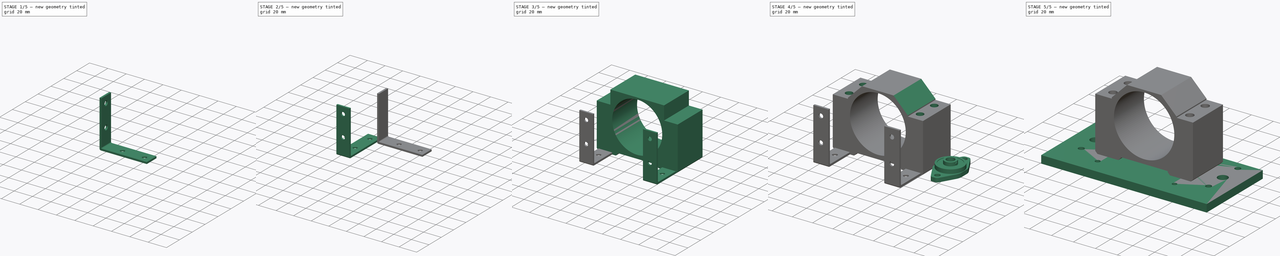
[diagram: build sequence overview — one tinted view per stage of 5, left to right]
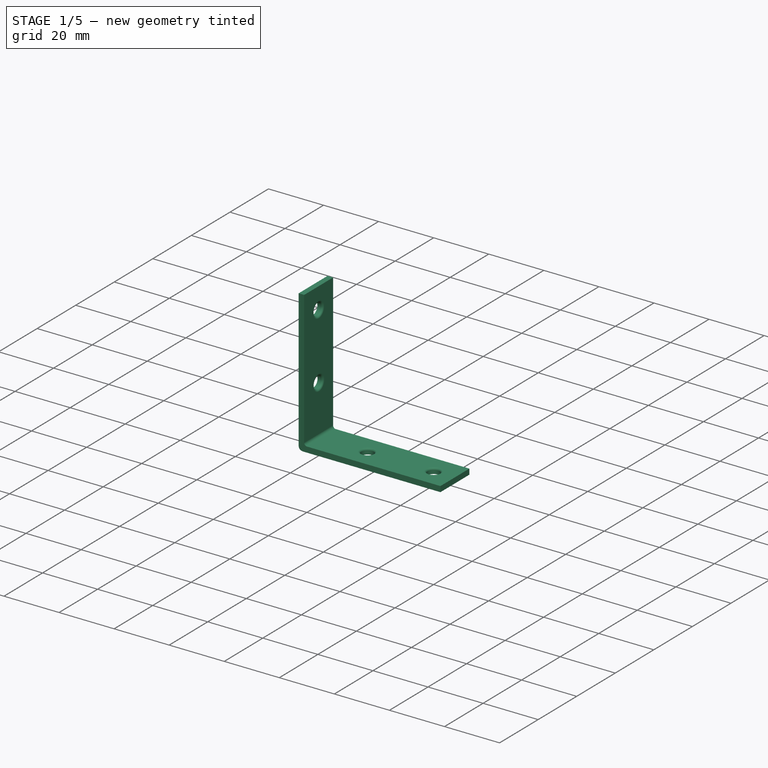
[diagram: stage 1 of 5 — iso view after this stage's code; geometry added in this stage tinted green]
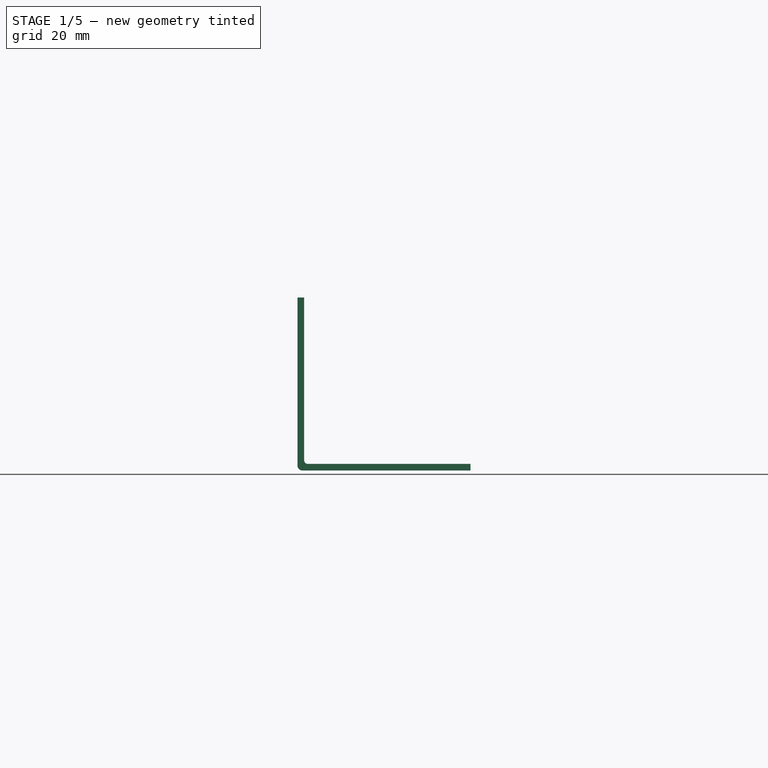
[diagram: stage 1 of 5 — front view after this stage's code; geometry added in this stage tinted green]
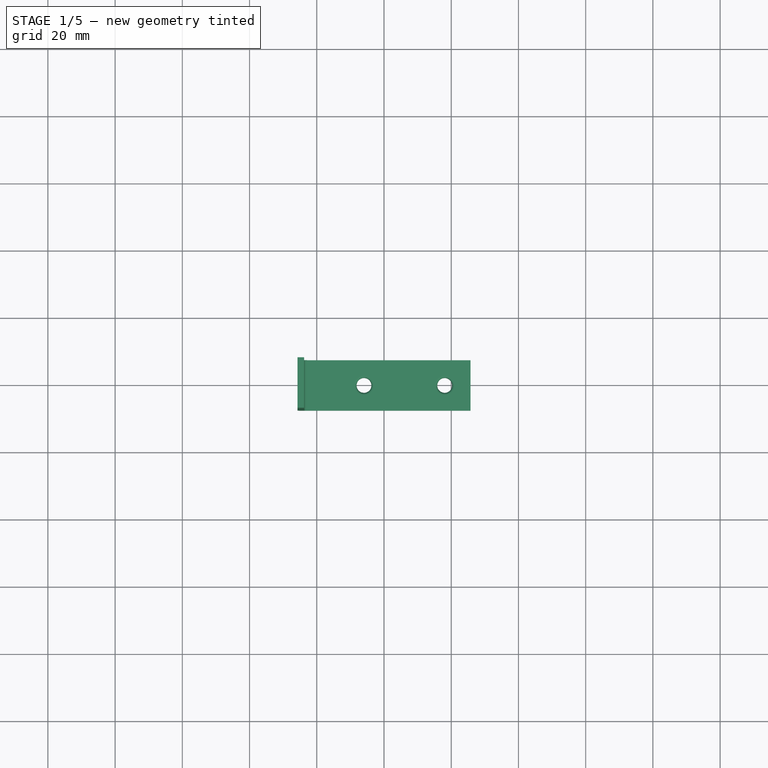
[diagram: stage 1 of 5 — top view after this stage's code; geometry added in this stage tinted green]
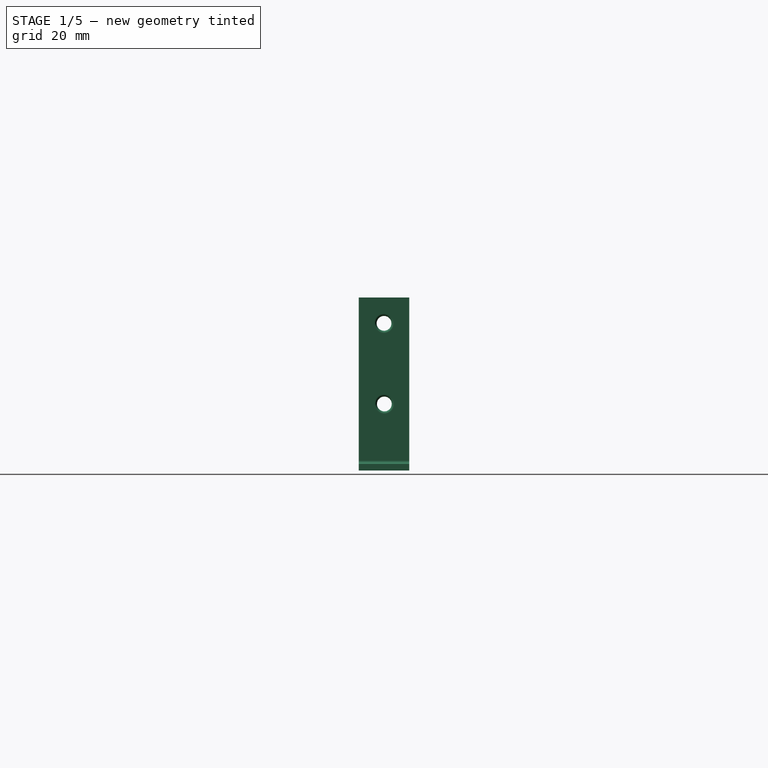
[diagram: stage 1 of 5 — right view after this stage's code; geometry added in this stage tinted green]
FCSTD DOCUMENT  (FreeCAD 0.17R13541 (Git))
Label: PieceBottom
License: All rights reserved
LicenseURL: http://en.wikipedia.org/wiki/All_rights_reserved
objects: Sketcher::SketchObject×27, PartDesign::Pocket×13, PartDesign::Pad×12, PartDesign::Fillet×8, PartDesign::Body×6, PartDesign::ShapeBinder×5, App::Part×4, PartDesign::FeatureBase×3, PartDesign::Chamfer×2, App::DocumentObjectGroup×1
note: 101 computed .brp shape members not serialized (recipe doc carries the construction recipe); baked Part::Feature solids carry a one-line shape summary decoded from their .brp

FEATURE [PartDesign::Body] Body005  label="L1"
  Group = -> [Sketch020,Pad011,Sketch021,Pad012,Fillet,Fillet001,Sketch022,Pocket007,Fillet002,Sketch023,Pocket008,Fillet003]
  Origin = -> Origin009
  Placement = pos=(35,-4,0) rot=(0,0,1;1.5708rad)
  Tip = -> Fillet003
FEATURE [Sketcher::SketchObject] Sketch024
  MapMode = 5
  Support = -> [XY_Plane010]
  sketch-geometry (4):
    g0: LineSegment StartX=-25.75 StartY=7.5 StartZ=0 EndX=25.75 EndY=7.5 EndZ=0
    g1: LineSegment StartX=25.75 StartY=7.5 StartZ=0 EndX=25.75 EndY=-7.5 EndZ=0
    g2: LineSegment StartX=25.75 StartY=-7.5 StartZ=0 EndX=-25.75 EndY=-7.5 EndZ=0
    g3: LineSegment StartX=-25.75 StartY=-7.5 StartZ=0 EndX=-25.75 EndY=7.5 EndZ=0
  constraints (11):
    c: Coincident(g0,g1)
    c: Coincident(g1,g2)
    c: Coincident(g2,g3)
    c: Coincident(g3,g0)
    c: Horizontal(g0)
    c: Horizontal(g2)
    c: Vertical(g1)
    c: Vertical(g3)
    c: DistanceX(g0,g0) = 51.5
    c: DistanceY(g1,g1) = 15
    c: Symmetric(g0,g1,g-1)
FEATURE [PartDesign::Pad] Pad013
  Length = 2
  Length2 = 100
  Profile = -> Sketch024
  Type = 0
FEATURE [Sketcher::SketchObject] Sketch025
  ExternalGeometry = -> [Pad013]
  MapMode = 5
  Placement = pos=(0,0,2) rot=(0,0,1;0rad)
  Support = -> [Pad013]
  sketch-geometry (5):
    g0: LineSegment StartX=-25.75 StartY=7.5 StartZ=0 EndX=-23.75 EndY=7.5 EndZ=0
    g1: LineSegment StartX=-23.75 StartY=7.5 StartZ=0 EndX=-23.75 EndY=-7.5 EndZ=0
    g2: LineSegment StartX=-23.75 StartY=-7.5 StartZ=0 EndX=-25.75 EndY=-7.5 EndZ=0
    g3: LineSegment StartX=-25.75 StartY=-7.5 StartZ=0 EndX=-25.75 EndY=7.5 EndZ=0
    g4: GeomPoint X=-11 Y=7.5 Z=0
  constraints (13):
    c: Coincident(g0,g1)
    c: Coincident(g1,g2)
    c: Coincident(g2,g3)
    c: Coincident(g3,g0)
    c: Horizontal(g0)
    c: Horizontal(g2)
    c: Vertical(g1)
    c: Vertical(g3)
    c: PointOnObject(g0,g-3)
    c: PointOnObject(g1,g-5)
    c: PointOnObject(g4,g-4)
    c: DistanceY(g0,g4) = 0
    c: DistanceX(g2,g2) = 2
FEATURE [PartDesign::Pad] Pad014
  BaseFeature = -> Pad013
  Length = 49.5
  Length2 = 100
  Profile = -> Sketch025
  Type = 0
FEATURE [PartDesign::Fillet] Fillet004
  Base = -> Pad014 [Edge7]
  BaseFeature = -> Pad014
  Radius = 1.5
FEATURE [PartDesign::Fillet] Fillet005
  Base = -> Fillet004 [Edge17]
  BaseFeature = -> Fillet004
  Radius = 1
FEATURE [Sketcher::SketchObject] Sketch026
  ExternalGeometry = -> [Fillet005]
  MapMode = 5
  Placement = pos=(0,0,2) rot=(0,0,1;0rad)
  Support = -> [Fillet005]
  sketch-geometry (7):
    g0: Circle CenterX=18.05 CenterY=0 CenterZ=0 NormalX=0 NormalY=0 NormalZ=1 AngleXU=0 Radius=2.2
    g1: LineSegment [constr] StartX=18.05 StartY=7.5 StartZ=0 EndX=18.05 EndY=0 EndZ=0
    g2: LineSegment [constr] StartX=18.05 StartY=0 StartZ=0 EndX=18.05 EndY=-7.5 EndZ=0
    g3: GeomPoint X=25.75 Y=-3.56525 Z=0
    g4: GeomPoint X=-8 Y=7.5 Z=0
    g5: GeomPoint X=-8.63892 Y=-7.5 Z=0
    g6: Circle CenterX=-5.95 CenterY=0 CenterZ=0 NormalX=0 NormalY=0 NormalZ=1 AngleXU=0 Radius=2.2
  constraints (15):
    c: Radius(g0) = 2.2
    c: PointOnObject(g1,g-3)
    c: Coincident(g1,g0)
    c: Coincident(g2,g0)
    c: PointOnObject(g2,g-4)
    c: Vertical(g2)
    c: Equal(g1,g2)
    c: Vertical(g1)
    c: PointOnObject(g3,g-5)
    c: DistanceX(g0,g3) = 7.7
    c: PointOnObject(g4,g-3)
    c: PointOnObject(g5,g-4)
    c: PointOnObject(g6,g-1)
    c: Radius(g6) = 2.2
    c: DistanceX(g6,g0) = 24
FEATURE [PartDesign::Pocket] Pocket009
  BaseFeature = -> Fillet005
  Length = 5
  Length2 = 100
  Profile = -> Sketch026
  Type = 1
FEATURE [PartDesign::Fillet] Fillet006
  Base = -> Pocket009 [Edge12,Edge11]
  BaseFeature = -> Pocket009
  Radius = 0.7
FEATURE [Sketcher::SketchObject] Sketch027
  ExternalGeometry = -> [Fillet006]
  MapMode = 5
  Placement = pos=(-23.75,0,0) rot=(0.57735,0.57735,0.57735;2.0944rad)
  Support = -> [Fillet006]
  sketch-geometry (9):
    g0: Circle CenterX=0 CenterY=43.8 CenterZ=0 NormalX=0 NormalY=0 NormalZ=1 AngleXU=0 Radius=2.2
    g1: GeomPoint X=-7.5 Y=43.8 Z=0
    g2: GeomPoint X=-3.67932 Y=51.5 Z=0
    g3: GeomPoint X=7.5 Y=43.8 Z=0
    g4: LineSegment [constr] StartX=-7.5 StartY=43.8 StartZ=0 EndX=0 EndY=43.8 EndZ=0
    g5: LineSegment [constr] StartX=7.5 StartY=43.8 StartZ=0 EndX=0 EndY=43.8 EndZ=0
    g6: Circle CenterX=0.10123 CenterY=19.8 CenterZ=0 NormalX=0 NormalY=0 NormalZ=1 AngleXU=0 Radius=2.2
    g7: LineSegment [constr] StartX=0.10123 StartY=19.8 StartZ=0 EndX=-7.5 EndY=19.8 EndZ=0
    g8: LineSegment [constr] StartX=-0.10123 StartY=31.6344 StartZ=0 EndX=7.5 EndY=31.6344 EndZ=0
  constraints (20):
    c: Radius(g0) = 2.2
    c: PointOnObject(g1,g-3)
    c: PointOnObject(g2,g-4)
    c: PointOnObject(g3,g-5)
    c: Coincident(g4,g1)
    c: Coincident(g4,g0)
    c: Coincident(g5,g3)
    c: Coincident(g5,g0)
    c: Equal(g4,g5)
    c: Horizontal(g4)
    c: Horizontal(g5)
    c: DistanceY(g0,g2) = 7.7
    c: Radius(g6) = 2.2
    c: Coincident(g7,g6)
    c: PointOnObject(g7,g-3)
    c: PointOnObject(g8,g-5)
    c: Equal(g7,g8)
    c: Horizontal(g7)
    c: Horizontal(g8)
    c: DistanceY(g6,g0) = 24
FEATURE [PartDesign::Pocket] Pocket010
  BaseFeature = -> Fillet006
  Length = 5
  Length2 = 100
  Profile = -> Sketch027
  Type = 1
FEATURE [PartDesign::Fillet] Fillet007
  Base = -> Pocket010 [Edge40,Edge41]
  BaseFeature = -> Pocket010
  Radius = 0.7
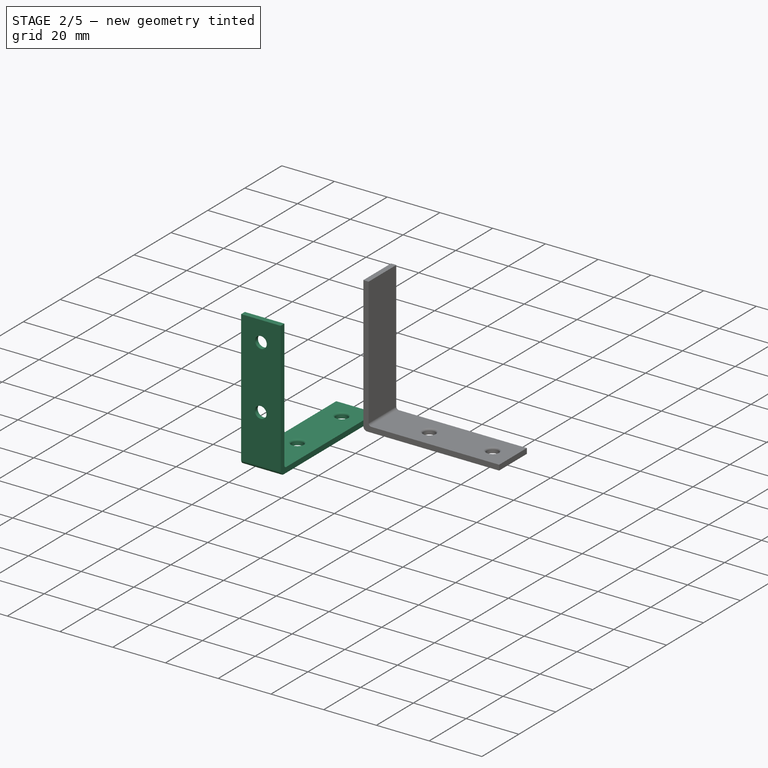
[diagram: stage 2 of 5 — iso view after this stage's code; geometry added in this stage tinted green]
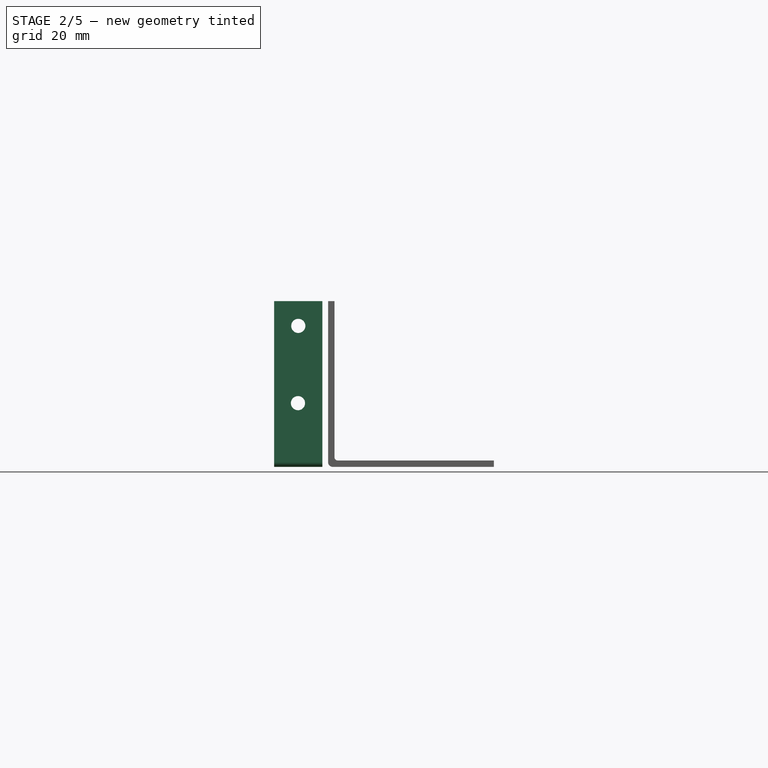
[diagram: stage 2 of 5 — front view after this stage's code; geometry added in this stage tinted green]
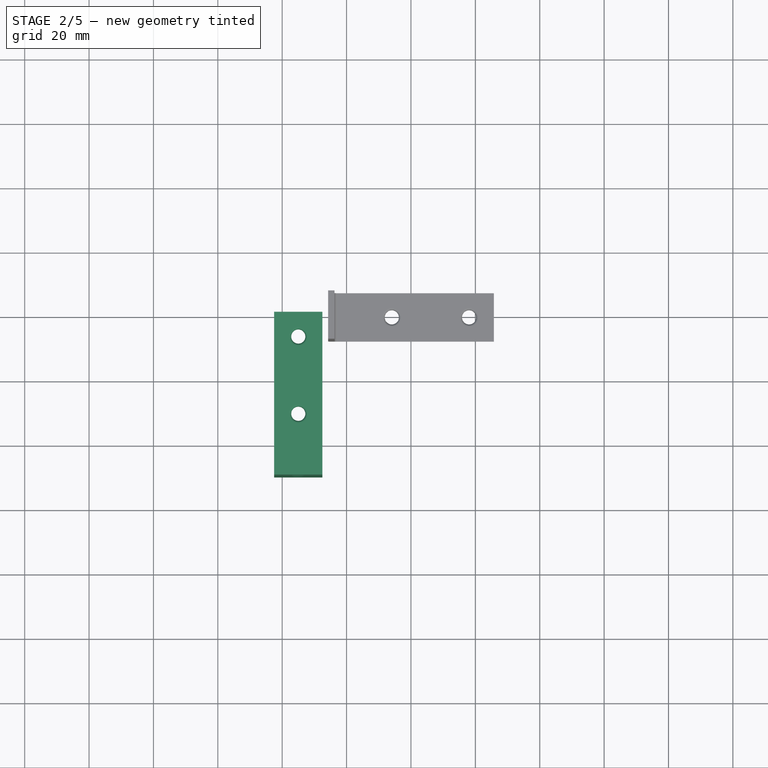
[diagram: stage 2 of 5 — top view after this stage's code; geometry added in this stage tinted green]
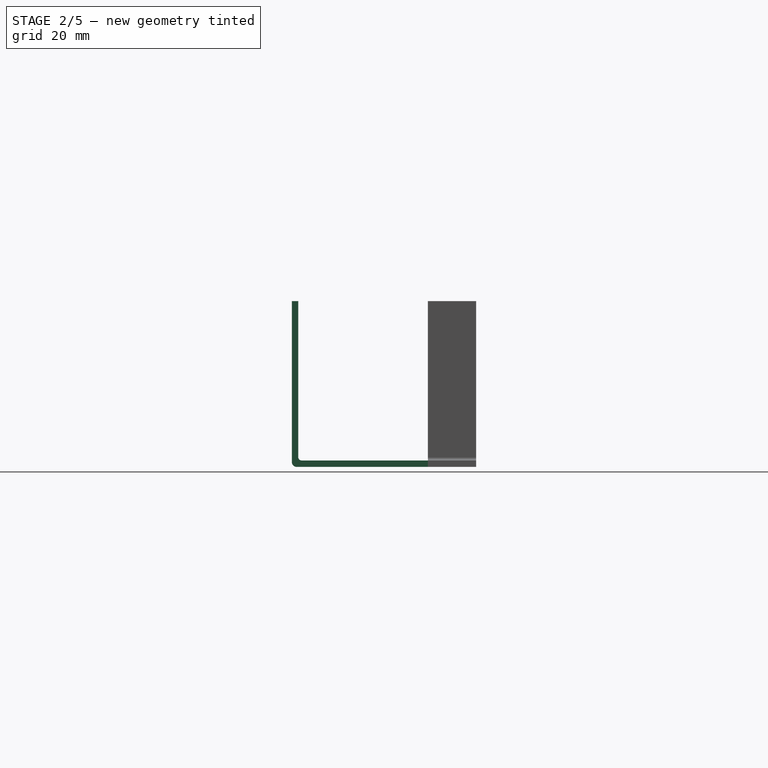
[diagram: stage 2 of 5 — right view after this stage's code; geometry added in this stage tinted green]
FEATURE [PartDesign::ShapeBinder] ShapeBinder002
  Support = -> [Clone]
FEATURE [Sketcher::SketchObject] Sketch020
  MapMode = 5
  Support = -> [XY_Plane009]
  sketch-geometry (4):
    g0: LineSegment StartX=-25.75 StartY=7.5 StartZ=0 EndX=25.75 EndY=7.5 EndZ=0
    g1: LineSegment StartX=25.75 StartY=7.5 StartZ=0 EndX=25.75 EndY=-7.5 EndZ=0
    g2: LineSegment StartX=25.75 StartY=-7.5 StartZ=0 EndX=-25.75 EndY=-7.5 EndZ=0
    g3: LineSegment StartX=-25.75 StartY=-7.5 StartZ=0 EndX=-25.75 EndY=7.5 EndZ=0
  constraints (11):
    c: Coincident(g0,g1)
    c: Coincident(g1,g2)
    c: Coincident(g2,g3)
    c: Coincident(g3,g0)
    c: Horizontal(g0)
    c: Horizontal(g2)
    c: Vertical(g1)
    c: Vertical(g3)
    c: DistanceX(g0,g0) = 51.5
    c: DistanceY(g1,g1) = 15
    c: Symmetric(g0,g1,g-1)
FEATURE [PartDesign::Pad] Pad011
  Length = 2
  Length2 = 100
  Profile = -> Sketch020
  Type = 0
FEATURE [Sketcher::SketchObject] Sketch021
  ExternalGeometry = -> [Pad011]
  MapMode = 5
  Placement = pos=(0,0,2) rot=(0,0,1;0rad)
  Support = -> [Pad011]
  sketch-geometry (5):
    g0: LineSegment StartX=-25.75 StartY=7.5 StartZ=0 EndX=-23.75 EndY=7.5 EndZ=0
    g1: LineSegment StartX=-23.75 StartY=7.5 StartZ=0 EndX=-23.75 EndY=-7.5 EndZ=0
    g2: LineSegment StartX=-23.75 StartY=-7.5 StartZ=0 EndX=-25.75 EndY=-7.5 EndZ=0
    g3: LineSegment StartX=-25.75 StartY=-7.5 StartZ=0 EndX=-25.75 EndY=7.5 EndZ=0
    g4: GeomPoint X=-11 Y=7.5 Z=0
  constraints (13):
    c: Coincident(g0,g1)
    c: Coincident(g1,g2)
    c: Coincident(g2,g3)
    c: Coincident(g3,g0)
    c: Horizontal(g0)
    c: Horizontal(g2)
    c: Vertical(g1)
    c: Vertical(g3)
    c: PointOnObject(g0,g-3)
    c: PointOnObject(g1,g-5)
    c: PointOnObject(g4,g-4)
    c: DistanceY(g0,g4) = 0
    c: DistanceX(g2,g2) = 2
FEATURE [PartDesign::Pad] Pad012
  BaseFeature = -> Pad011
  Length = 49.5
  Length2 = 100
  Profile = -> Sketch021
  Type = 0
FEATURE [PartDesign::Fillet] Fillet
  Base = -> Pad012 [Edge7]
  BaseFeature = -> Pad012
  Radius = 1.5
FEATURE [PartDesign::Fillet] Fillet001
  Base = -> Fillet [Edge17]
  BaseFeature = -> Fillet
  Radius = 1
FEATURE [Sketcher::SketchObject] Sketch022
  ExternalGeometry = -> [Fillet001]
  MapMode = 5
  Placement = pos=(0,0,2) rot=(0,0,1;0rad)
  Support = -> [Fillet001]
  sketch-geometry (7):
    g0: Circle CenterX=18.05 CenterY=0 CenterZ=0 NormalX=0 NormalY=0 NormalZ=1 AngleXU=0 Radius=2.2
    g1: LineSegment [constr] StartX=18.05 StartY=7.5 StartZ=0 EndX=18.05 EndY=0 EndZ=0
    g2: LineSegment [constr] StartX=18.05 StartY=0 StartZ=0 EndX=18.05 EndY=-7.5 EndZ=0
    g3: GeomPoint X=25.75 Y=-3.56525 Z=0
    g4: GeomPoint X=-8 Y=7.5 Z=0
    g5: GeomPoint X=-8.63892 Y=-7.5 Z=0
    g6: Circle CenterX=-5.95 CenterY=0 CenterZ=0 NormalX=0 NormalY=0 NormalZ=1 AngleXU=0 Radius=2.2
  constraints (15):
    c: Radius(g0) = 2.2
    c: PointOnObject(g1,g-3)
    c: Coincident(g1,g0)
    c: Coincident(g2,g0)
    c: PointOnObject(g2,g-4)
    c: Vertical(g2)
    c: Equal(g1,g2)
    c: Vertical(g1)
    c: PointOnObject(g3,g-5)
    c: DistanceX(g0,g3) = 7.7
    c: PointOnObject(g4,g-3)
    c: PointOnObject(g5,g-4)
    c: PointOnObject(g6,g-1)
    c: Radius(g6) = 2.2
    c: DistanceX(g6,g0) = 24
FEATURE [PartDesign::Pocket] Pocket007
  BaseFeature = -> Fillet001
  Length = 5
  Length2 = 100
  Profile = -> Sketch022
  Type = 1
FEATURE [PartDesign::Fillet] Fillet002
  Base = -> Pocket007 [Edge12,Edge11]
  BaseFeature = -> Pocket007
  Radius = 0.7
FEATURE [PartDesign::FeatureBase] Clone002  label="L2_CLONE"
  BaseFeature = -> Body006
  Placement = pos=(-35,-24,0) rot=(0,0,1;1.5708rad)
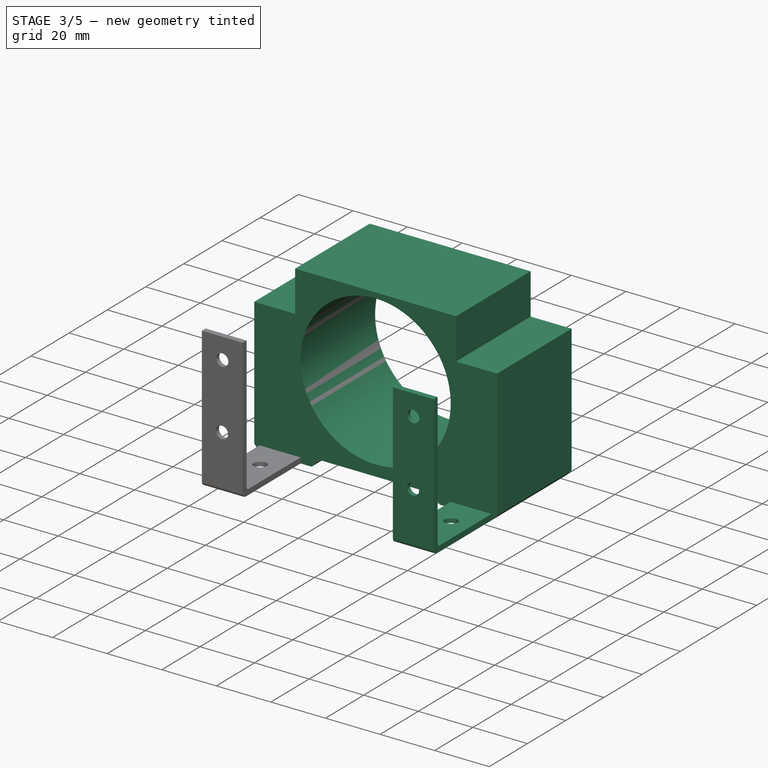
[diagram: stage 3 of 5 — iso view after this stage's code; geometry added in this stage tinted green]
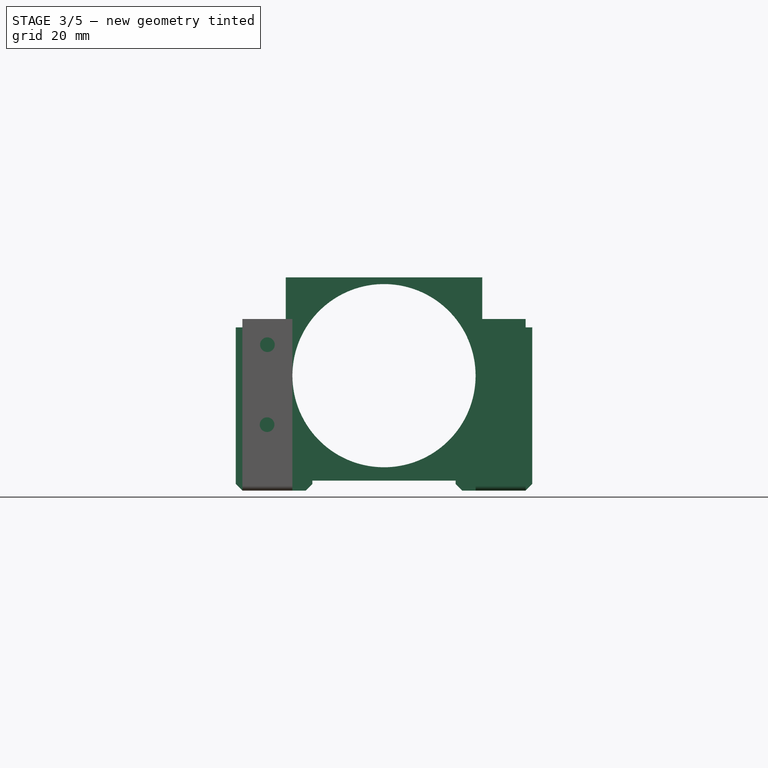
[diagram: stage 3 of 5 — front view after this stage's code; geometry added in this stage tinted green]
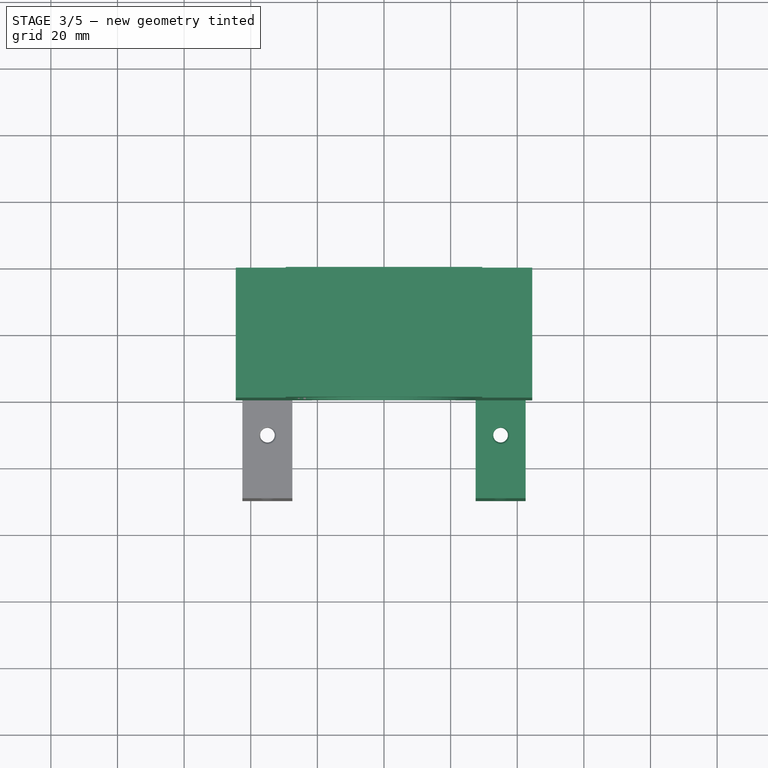
[diagram: stage 3 of 5 — top view after this stage's code; geometry added in this stage tinted green]
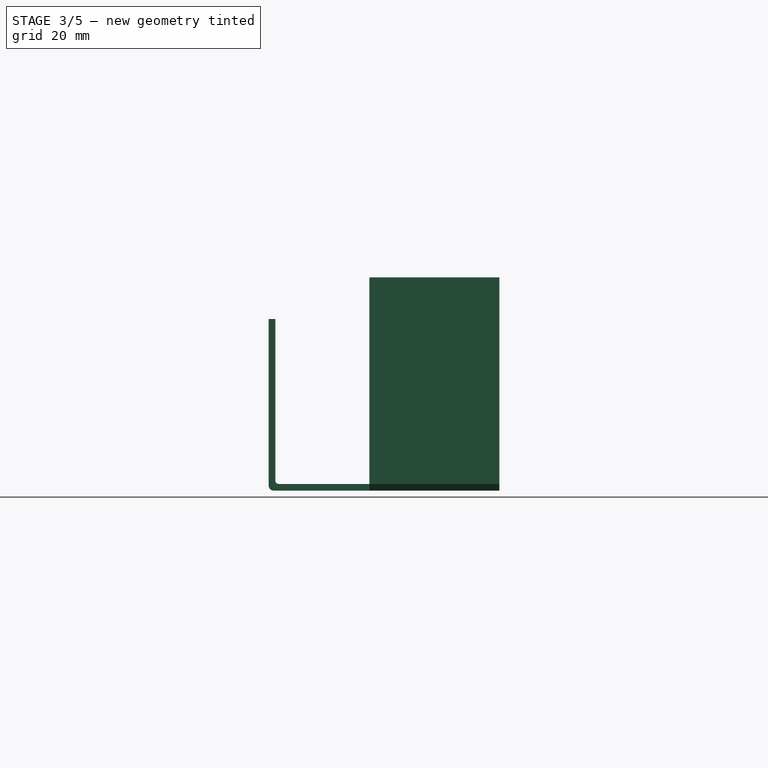
[diagram: stage 3 of 5 — right view after this stage's code; geometry added in this stage tinted green]
FEATURE [Sketcher::SketchObject] Sketch023
  ExternalGeometry = -> [Fillet002]
  MapMode = 5
  Placement = pos=(-23.75,0,0) rot=(0.57735,0.57735,0.57735;2.0944rad)
  Support = -> [Fillet002]
  sketch-geometry (9):
    g0: Circle CenterX=0 CenterY=43.8 CenterZ=0 NormalX=0 NormalY=0 NormalZ=1 AngleXU=0 Radius=2.2
    g1: GeomPoint X=-7.5 Y=43.8 Z=0
    g2: GeomPoint X=-3.67932 Y=51.5 Z=0
    g3: GeomPoint X=7.5 Y=43.8 Z=0
    g4: LineSegment [constr] StartX=-7.5 StartY=43.8 StartZ=0 EndX=0 EndY=43.8 EndZ=0
    g5: LineSegment [constr] StartX=7.5 StartY=43.8 StartZ=0 EndX=0 EndY=43.8 EndZ=0
    g6: Circle CenterX=0.10123 CenterY=19.8 CenterZ=0 NormalX=0 NormalY=0 NormalZ=1 AngleXU=0 Radius=2.2
    g7: LineSegment [constr] StartX=0.10123 StartY=19.8 StartZ=0 EndX=-7.5 EndY=19.8 EndZ=0
    g8: LineSegment [constr] StartX=-0.10123 StartY=31.6344 StartZ=0 EndX=7.5 EndY=31.6344 EndZ=0
  constraints (20):
    c: Radius(g0) = 2.2
    c: PointOnObject(g1,g-3)
    c: PointOnObject(g2,g-4)
    c: PointOnObject(g3,g-5)
    c: Coincident(g4,g1)
    c: Coincident(g4,g0)
    c: Coincident(g5,g3)
    c: Coincident(g5,g0)
    c: Equal(g4,g5)
    c: Horizontal(g4)
    c: Horizontal(g5)
    c: DistanceY(g0,g2) = 7.7
    c: Radius(g6) = 2.2
    c: Coincident(g7,g6)
    c: PointOnObject(g7,g-3)
    c: PointOnObject(g8,g-5)
    c: Equal(g7,g8)
    c: Horizontal(g7)
    c: Horizontal(g8)
    c: DistanceY(g6,g0) = 24
FEATURE [PartDesign::Pocket] Pocket008
  BaseFeature = -> Fillet002
  Length = 5
  Length2 = 100
  Profile = -> Sketch023
  Type = 1
FEATURE [PartDesign::Fillet] Fillet003
  Base = -> Pocket008 [Edge40,Edge41]
  BaseFeature = -> Pocket008
  Radius = 0.7
FEATURE [PartDesign::Body] Body006  label="L2"
  Group = -> [Sketch024,Pad013,Sketch025,Pad014,Fillet004,Fillet005,Sketch026,Pocket009,Fillet006,Sketch027,Pocket010,Fillet007]
  Origin = -> Origin010
  Placement = pos=(-35,-4,0) rot=(0,0,1;1.5708rad)
  Tip = -> Fillet007
FEATURE [Sketcher::SketchObject] Sketch028
  MapMode = 5
  Support = -> [XY_Plane011]
  sketch-geometry (4):
    g0: LineSegment StartX=-44.5 StartY=-19.5 StartZ=0 EndX=44.5 EndY=-19.5 EndZ=0
    g1: LineSegment StartX=44.5 StartY=-19.5 StartZ=0 EndX=44.5 EndY=19.5 EndZ=0
    g2: LineSegment StartX=44.5 StartY=19.5 StartZ=0 EndX=-44.5 EndY=19.5 EndZ=0
    g3: LineSegment StartX=-44.5 StartY=19.5 StartZ=0 EndX=-44.5 EndY=-19.5 EndZ=0
  constraints (11):
    c: Coincident(g0,g1)
    c: Coincident(g1,g2)
    c: Coincident(g2,g3)
    c: Coincident(g3,g0)
    c: Horizontal(g0)
    c: Horizontal(g2)
    c: Vertical(g1)
    c: Vertical(g3)
    c: DistanceX(g0,g0) = 89
    c: DistanceY(g3,g3) = 39
    c: Symmetric(g2,g0,g-1)
FEATURE [PartDesign::Pad] Pad015
  Length = 64
  Length2 = 100
  Profile = -> Sketch028
  Type = 0
FEATURE [Sketcher::SketchObject] Sketch029
  MapMode = 5
  Support = -> [XY_Plane011]
  sketch-geometry (4):
    g0: LineSegment StartX=-21.5 StartY=19.5 StartZ=0 EndX=21.5 EndY=19.5 EndZ=0
    g1: LineSegment StartX=21.5 StartY=19.5 StartZ=0 EndX=21.5 EndY=-19.5 EndZ=0
    g2: LineSegment StartX=21.5 StartY=-19.5 StartZ=0 EndX=-21.5 EndY=-19.5 EndZ=0
    g3: LineSegment StartX=-21.5 StartY=-19.5 StartZ=0 EndX=-21.5 EndY=19.5 EndZ=0
  constraints (11):
    c: Coincident(g0,g1)
    c: Coincident(g1,g2)
    c: Coincident(g2,g3)
    c: Coincident(g3,g0)
    c: Horizontal(g0)
    c: Horizontal(g2)
    c: Vertical(g1)
    c: Vertical(g3)
    c: DistanceX(g0,g0) = 43
    c: DistanceY(g1,g1) = 39
    c: Symmetric(g0,g1,g-1)
FEATURE [PartDesign::Pocket] Pocket011
  BaseFeature = -> Pad015
  Length = 3
  Length2 = 100
  Profile = -> Sketch029
  Reversed = true
  Type = 0
FEATURE [PartDesign::Chamfer] Chamfer
  Base = -> Pocket011 [Edge17,Edge11,Edge19,Edge9]
  BaseFeature = -> Pocket011
  Size = 2
FEATURE [Sketcher::SketchObject] Sketch030
  MapMode = 5
  Placement = pos=(0,-19.5,0) rot=(1,0,0;1.5708rad)
  Support = -> [Chamfer]
  sketch-geometry (1):
    g0: Circle CenterX=0 CenterY=34.5 CenterZ=0 NormalX=0 NormalY=0 NormalZ=1 AngleXU=0 Radius=27.5
  constraints (3):
    c: PointOnObject(g0,g-2)
    c: DistanceY(g0) = 34.5
    c: Radius(g0) = 27.5
FEATURE [PartDesign::Pocket] Pocket012
  BaseFeature = -> Chamfer
  Length = 5
  Length2 = 100
  Profile = -> Sketch030
  Type = 1
FEATURE [Sketcher::SketchObject] Sketch031
  ExternalGeometry = -> [Pocket012]
  MapMode = 5
  Placement = pos=(0,0,64) rot=(0,0,1;0rad)
  Support = -> [Pocket012]
  sketch-geometry (11):
    g0: LineSegment StartX=-44.5 StartY=-19.5 StartZ=0 EndX=-29.5 EndY=-19.5 EndZ=0
    g1: LineSegment StartX=-29.5 StartY=-19.5 StartZ=0 EndX=-29.5 EndY=19.5 EndZ=0
    g2: LineSegment StartX=-29.5 StartY=19.5 StartZ=0 EndX=-44.5 EndY=19.5 EndZ=0
    g3: LineSegment StartX=-44.5 StartY=19.5 StartZ=0 EndX=-44.5 EndY=-19.5 EndZ=0
    g4: GeomPoint X=-34.6899 Y=19.5 Z=0
    g5: LineSegment StartX=44.5 StartY=19.5 StartZ=0 EndX=29.5 EndY=19.5 EndZ=0
    g6: LineSegment StartX=29.5 StartY=19.5 StartZ=0 EndX=29.5 EndY=-19.5 EndZ=0
    g7: LineSegment StartX=29.5 StartY=-19.5 StartZ=0 EndX=44.5 EndY=-19.5 EndZ=0
    g8: LineSegment StartX=44.5 StartY=-19.5 StartZ=0 EndX=44.5 EndY=19.5 EndZ=0
    g9: GeomPoint X=34.4199 Y=19.5 Z=0
    g10: GeomPoint X=25.6462 Y=-19.5 Z=0
  constraints (27):
    c: Coincident(g0,g1)
    c: Coincident(g1,g2)
    c: Coincident(g2,g3)
    c: Coincident(g3,g0)
    c: Horizontal(g0)
    c: Horizontal(g2)
    c: Vertical(g1)
    c: Vertical(g3)
    c: PointOnObject(g0,g-3)
    c: DistanceX(g2,g2) = 15
    c: DistanceY(g1,g1) = 39
    c: PointOnObject(g4,g-5)
    c: DistanceY(g1,g4) = 0
    c: Coincident(g5,g6)
    c: Coincident(g6,g7)
    c: Coincident(g7,g8)
    c: Coincident(g8,g5)
    c: Horizontal(g5)
    c: Horizontal(g7)
    c: Vertical(g6)
    c: Vertical(g8)
    c: PointOnObject(g5,g-4)
    c: PointOnObject(g6,g-6)
    c: DistanceX(g5,g5) = 15
    c: PointOnObject(g9,g-5)
    c: PointOnObject(g10,g-6)
    c: DistanceY(g5,g9) = 0
FEATURE [PartDesign::Pocket] Pocket002
  BaseFeature = -> Pocket012
  Length = 15
  Length2 = 100
  Profile = -> Sketch031
  Type = 0
FEATURE [PartDesign::Body] Body007  label="Clamp"
  Group = -> [Sketch028,Pad015,Sketch029,Pocket011,Chamfer,Sketch030,Pocket012,Sketch031,Pocket002,Chamfer001,Sketch032,Pocket003]
  Origin = -> Origin011
  Placement = pos=(0,-30,32) rot=(1,0,0;1.5708rad)
  Tip = -> Pocket003
FEATURE [PartDesign::FeatureBase] Clone001  label="L1_CLONE"
  BaseFeature = -> Body005
  Placement = pos=(35,-24,0) rot=(0,0,1;1.5708rad)
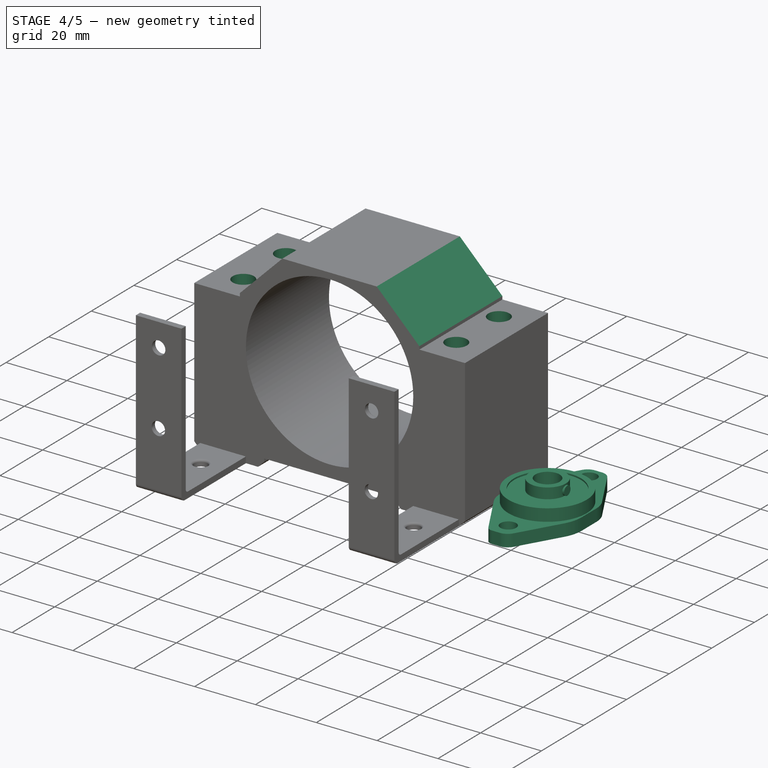
[diagram: stage 4 of 5 — iso view after this stage's code; geometry added in this stage tinted green]
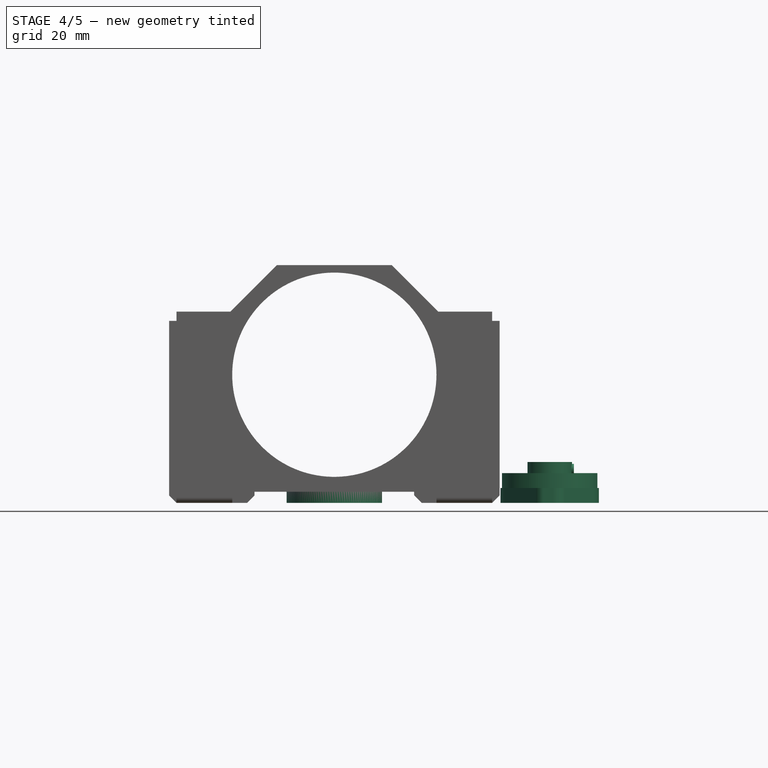
[diagram: stage 4 of 5 — front view after this stage's code; geometry added in this stage tinted green]
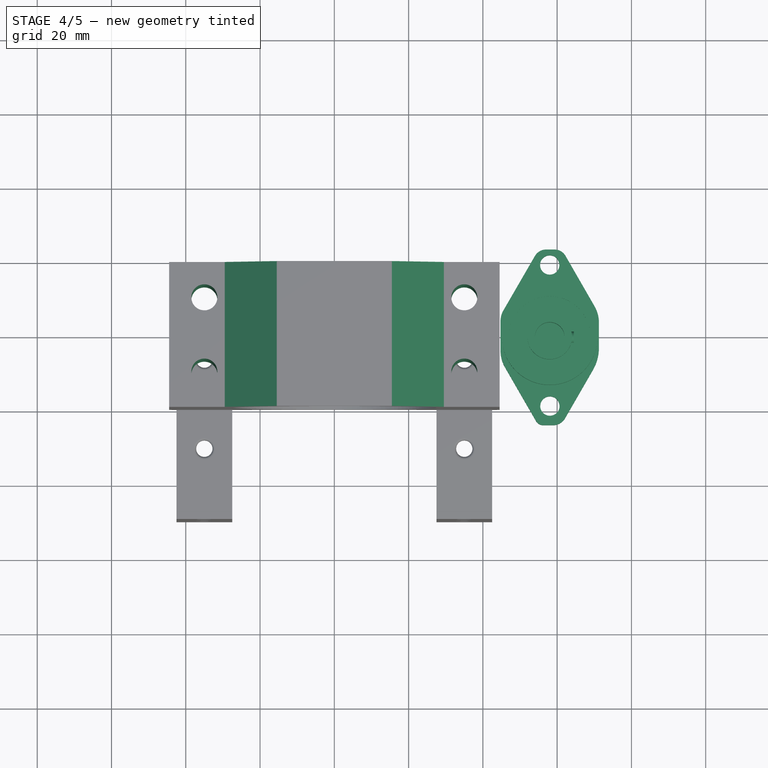
[diagram: stage 4 of 5 — top view after this stage's code; geometry added in this stage tinted green]
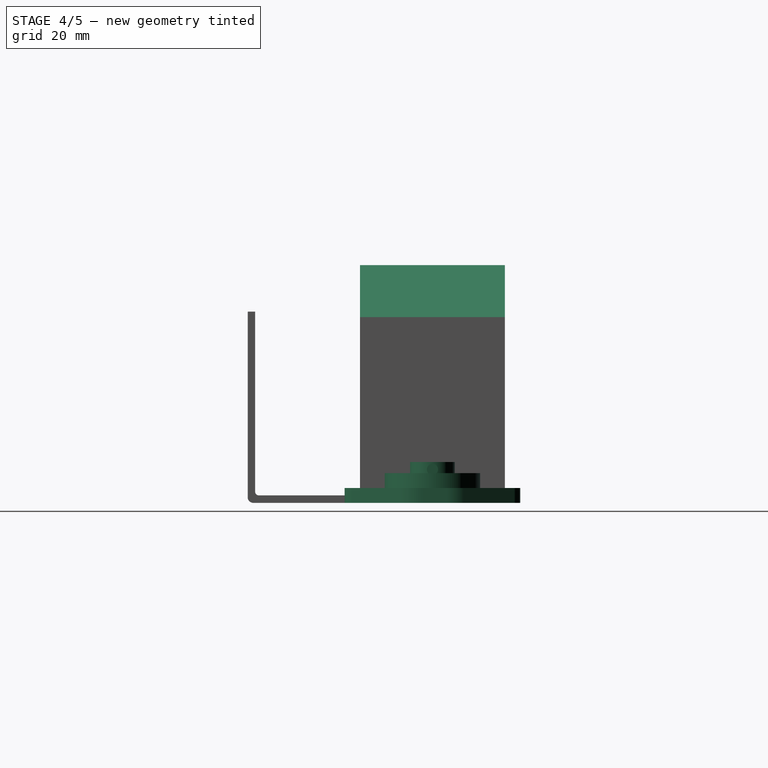
[diagram: stage 4 of 5 — right view after this stage's code; geometry added in this stage tinted green]
FEATURE [App::DocumentObjectGroup] Group
FEATURE [Sketcher::SketchObject] Sketch012
  MapMode = 5
  Support = -> [XY_Plane002]
  sketch-geometry (1):
    g0: Circle CenterX=0 CenterY=0 CenterZ=0 NormalX=0 NormalY=0 NormalZ=1 AngleXU=0 Radius=12.85
  constraints (2):
    c: Coincident(g0,g-1)
    c: Radius(g0) = 12.85
FEATURE [PartDesign::Pad] Pad006
  Length = 4
  Length2 = 100
  Profile = -> Sketch012
  Type = 0
FEATURE [Sketcher::SketchObject] Sketch013
  MapMode = 5
  Placement = pos=(0,0,4) rot=(0,0,1;0rad)
  sketch-geometry (1):
    g0: Circle CenterX=0 CenterY=0 CenterZ=0 NormalX=0 NormalY=0 NormalZ=1 AngleXU=0 Radius=11
  constraints (2):
    c: Coincident(g0,g-1)
    c: Radius(g0) = 11
FEATURE [PartDesign::Pocket] Pocket004
  BaseFeature = -> Pad006
  Length = 0.5
  Length2 = 100
  Profile = -> Sketch013
  Type = 0
FEATURE [Sketcher::SketchObject] Sketch014
  MapMode = 5
  Placement = pos=(0,0,3.5) rot=(0,0,1;0rad)
  Support = -> [Pocket004]
  sketch-geometry (1):
    g0: Circle CenterX=0 CenterY=0 CenterZ=0 NormalX=0 NormalY=0 NormalZ=1 AngleXU=0 Radius=6
  constraints (2):
    c: Coincident(g0,g-1)
    c: Radius(g0) = 6
FEATURE [PartDesign::Pad] Pad007
  BaseFeature = -> Pocket004
  Length = 3.5
  Length2 = 100
  Profile = -> Sketch014
  Type = 0
FEATURE [Sketcher::SketchObject] Sketch015
  MapMode = 5
  Placement = pos=(0,0,7) rot=(0,0,1;0rad)
  Support = -> [Pad007]
  sketch-geometry (1):
    g0: Circle CenterX=0 CenterY=0 CenterZ=0 NormalX=0 NormalY=0 NormalZ=1 AngleXU=0 Radius=4
  constraints (2):
    c: PointOnObject(g0,g-1)
    c: Radius(g0) = 4
FEATURE [Sketcher::SketchObject] Sketch016
  MapMode = 5
  Placement = pos=(0,0,0) rot=(1,0,0;1.5708rad)
  Support = -> [XZ_Plane002]
  sketch-geometry (1):
    g0: Circle CenterX=0 CenterY=5 CenterZ=0 NormalX=0 NormalY=0 NormalZ=1 AngleXU=0 Radius=1.5
  constraints (2):
    c: PointOnObject(g0,g-2)
    c: Radius(g0) = 1.5
FEATURE [Sketcher::SketchObject] Sketch017
  MapMode = 5
  Support = -> [XY_Plane002]
  sketch-geometry (18):
    g0: LineSegment StartX=-3.54245 StartY=13.25 StartZ=0 EndX=4.3734 EndY=13.25 EndZ=0
    g1: LineSegment StartX=23.65 StartY=1.04209 StartZ=0 EndX=23.65 EndY=-1.32221 EndZ=0
    g2: LineSegment StartX=3.96901 StartY=-13.25 StartZ=0 EndX=-2.71589 EndY=-13.25 EndZ=0
    g3: LineSegment StartX=-23.65 StartY=-0.871538 StartZ=0 EndX=-23.65 EndY=1.68697 EndZ=0
    g4: LineSegment StartX=-8.04359 StartY=12.0439 StartZ=0 EndX=-22.4838 EndY=3.70685 EndZ=0
    g5: LineSegment StartX=-21.7776 StartY=-4.11457 StartZ=0 EndX=-8.75941 EndY=-11.6306 EndZ=0
    g6: LineSegment StartX=8.3652 StartY=-12.0747 StartZ=0 EndX=21.9595 EndY=-4.24643 EndZ=0
    g7: LineSegment StartX=7.25116 StartY=12.4771 StartZ=0 EndX=21.9699 EndY=3.95601 EndZ=0
    g8: Circle CenterX=-18.5 CenterY=-0.045589 CenterZ=0 NormalX=0 NormalY=0 NormalZ=1 AngleXU=0 Radius=2.6
    g9: Circle CenterX=19.5 CenterY=0 CenterZ=0 NormalX=0 NormalY=0 NormalZ=1 AngleXU=0 Radius=2.6
    g10: ArcOfCircle CenterX=-3.54245 CenterY=4.24771 CenterZ=0 NormalX=0 NormalY=0 NormalZ=1 AngleXU=0 Radius=9.00229 StartAngle=1.5708 EndAngle=2.0944
    g11: ArcOfCircle CenterX=4.3734 CenterY=7.50623 CenterZ=0 NormalX=0 NormalY=0 NormalZ=1 AngleXU=0 Radius=5.74377 StartAngle=1.04602 EndAngle=1.5708
    g12: ArcOfCircle CenterX=20.283 CenterY=1.04209 CenterZ=0 NormalX=0 NormalY=0 NormalZ=1 AngleXU=0 Radius=3.367 StartAngle=0 EndAngle=1.04602
    g13: ArcOfCircle CenterX=20.2756 CenterY=-1.32221 CenterZ=0 NormalX=0 NormalY=0 NormalZ=1 AngleXU=0 Radius=3.37441 StartAngle=5.23486 EndAngle=6.28319
    g14: ArcOfCircle CenterX=3.96901 CenterY=-4.44043 CenterZ=0 NormalX=0 NormalY=0 NormalZ=1 AngleXU=0 Radius=8.80957 StartAngle=4.71239 EndAngle=5.23486
    g15: ArcOfCircle CenterX=-2.71589 CenterY=-1.16296 CenterZ=0 NormalX=0 NormalY=0 NormalZ=1 AngleXU=0 Radius=12.087 StartAngle=4.18879 EndAngle=4.71239
    g16: ArcOfCircle CenterX=-19.9053 CenterY=-0.871538 CenterZ=0 NormalX=0 NormalY=0 NormalZ=1 AngleXU=0 Radius=3.74473 StartAngle=3.14159 EndAngle=4.18879
    g17: ArcOfCircle CenterX=-21.3176 CenterY=1.68697 CenterZ=0 NormalX=0 NormalY=0 NormalZ=1 AngleXU=0 Radius=2.33237 StartAngle=2.0944 EndAngle=3.14159
  constraints (27):
    c: Horizontal(g0)
    c: Horizontal(g2)
    c: Vertical(g1)
    c: Vertical(g3)
    c: Angle(g-1,g4) = 0.523599
    c: Angle(g5,g-1) = 0.523599
    c: Radius(g8) = 2.6
    c: DistanceX(g8,g-1) = 18.5
    c: PointOnObject(g9,g-1)
    c: Radius(g9) = 2.6
    c: DistanceX(g8,g9) = 38
    c: Tangent(g4,g10) = -1.5708
    c: Tangent(g0,g10) = 1.5708
    c: Tangent(g0,g11) = 1.5708
    c: Tangent(g7,g11) = 1.5708
    c: Tangent(g7,g12) = 1.5708
    c: Tangent(g1,g12) = 1.5708
    c: Tangent(g1,g13) = 1.5708
    c: Tangent(g6,g13) = -1.5708
    c: Tangent(g6,g14) = -1.5708
    c: Tangent(g2,g14) = 1.5708
    c: Tangent(g2,g15) = 1.5708
    c: Tangent(g5,g15) = -1.5708
    c: Tangent(g5,g16) = -1.5708
    c: Tangent(g3,g16) = 1.5708
    c: Tangent(g3,g17) = 1.5708
    c: Tangent(g4,g17) = -1.5708
FEATURE [PartDesign::Pad] Pad008
  BaseFeature = -> Pad007
  Length = 6.5
  Length2 = 100
  Profile = -> Sketch016
  Type = 0
FEATURE [PartDesign::ShapeBinder] ShapeBinder  label="Nut002"
  Support = -> [Pocket001]
FEATURE [PartDesign::ShapeBinder] ShapeBinder001  label="LinearBearing1"
  Placement = pos=(-58,0,4) rot=(0,0,1;1.5708rad)
  Support = -> [Body002]
FEATURE [App::Part] Part003  label="Bearing003"
  License = CC BY 3.0
  LicenseURL = http://creativecommons.org/licenses/by/3.0/
  Origin = -> Origin008
  Placement = pos=(40,0,4) rot=(0,0,1;1.5708rad)
FEATURE [PartDesign::FeatureBase] Clone  label="Bearing004"
  Placement = pos=(58,0,4) rot=(0,0,1;1.5708rad)
FEATURE [PartDesign::Chamfer] Chamfer001
  Base = -> Pocket002 [Edge40,Edge41]
  BaseFeature = -> Pocket002
  Size = 14
FEATURE [Sketcher::SketchObject] Sketch032
  ExternalGeometry = -> [Chamfer001,Pocket002]
  MapMode = 5
  Placement = pos=(0,0,0) rot=(1,0,0;3.14159rad)
  Support = -> [Chamfer001]
  sketch-geometry (10):
    g0: Circle CenterX=-35 CenterY=-10 CenterZ=0 NormalX=0 NormalY=0 NormalZ=1 AngleXU=0 Radius=3.5
    g1: GeomPoint X=44.5 Y=-4.24554 Z=0
    g2: GeomPoint X=33.7823 Y=-19.5 Z=0
    g3: GeomPoint X=34.5708 Y=19.5 Z=0
    g4: GeomPoint X=-44.5 Y=-10 Z=0
    g5: GeomPoint X=-34.2675 Y=-19.5 Z=0
    g6: GeomPoint X=-36.3903 Y=19.5 Z=0
    g7: Circle CenterX=-35 CenterY=10 CenterZ=0 NormalX=0 NormalY=0 NormalZ=1 AngleXU=0 Radius=3.5
    g8: Circle CenterX=35 CenterY=10 CenterZ=0 NormalX=0 NormalY=0 NormalZ=1 AngleXU=0 Radius=3.5
    g9: Circle CenterX=35 CenterY=-10 CenterZ=0 NormalX=0 NormalY=0 NormalZ=1 AngleXU=0 Radius=3.5
  constraints (12):
    c: Radius(g0) = 3.5
    c: PointOnObject(g1,g-12)
    c: PointOnObject(g2,g-7)
    c: PointOnObject(g3,g-8)
    c: PointOnObject(g4,g-11)
    c: PointOnObject(g5,g-4)
    c: PointOnObject(g6,g-3)
    c: DistanceX(g4,g0) = 9.5
    c: DistanceY(g5,g0) = 9.5
    c: Radius(g7) = 3.5
    c: Radius(g9) = 3.5
    c: Radius(g8) = 3.5
FEATURE [PartDesign::Pocket] Pocket003
  BaseFeature = -> Chamfer001
  Length = 5
  Length2 = 100
  Profile = -> Sketch032
  Type = 1
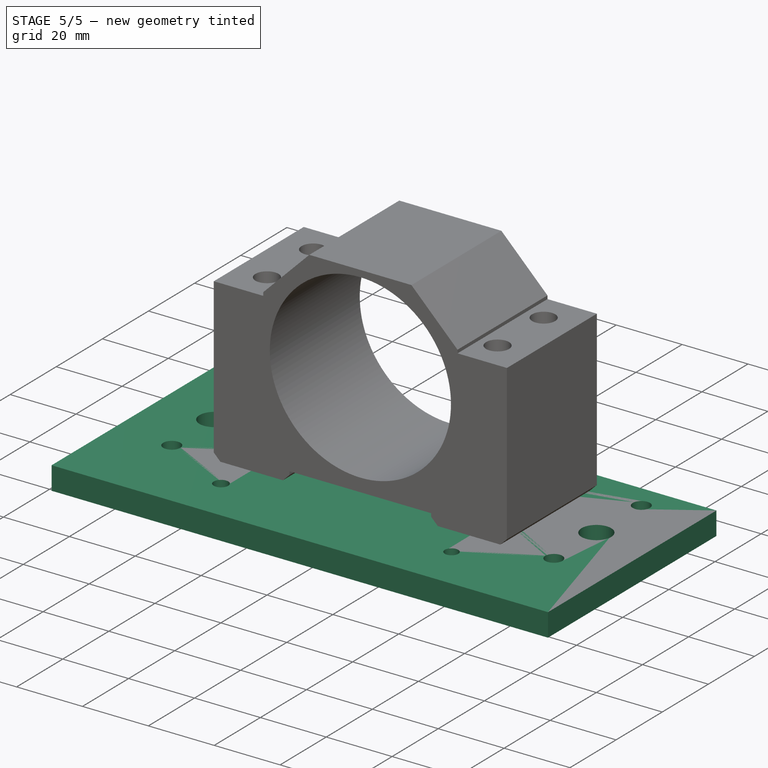
[diagram: stage 5 of 5 — iso view after this stage's code; geometry added in this stage tinted green]
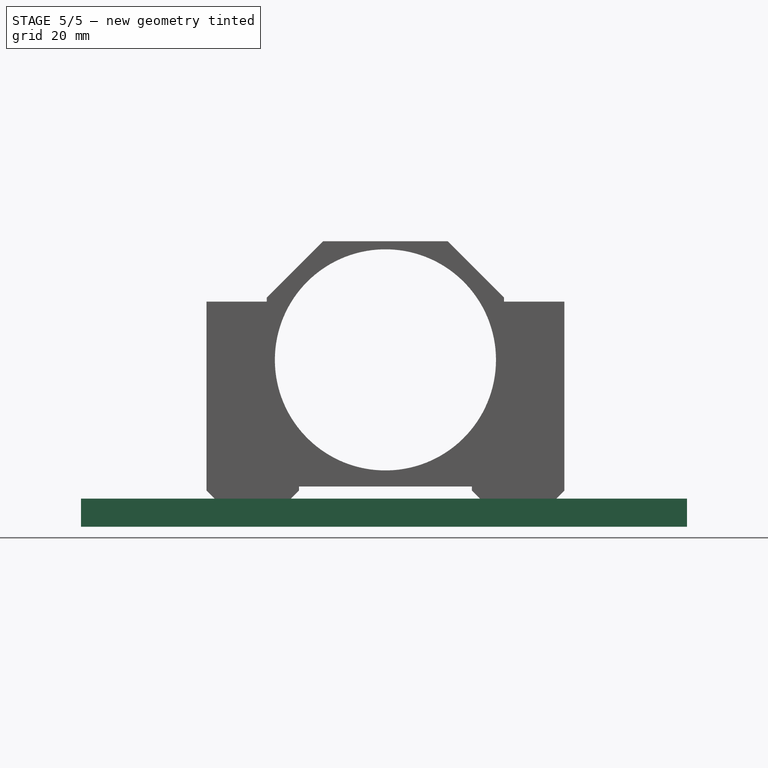
[diagram: stage 5 of 5 — front view after this stage's code; geometry added in this stage tinted green]
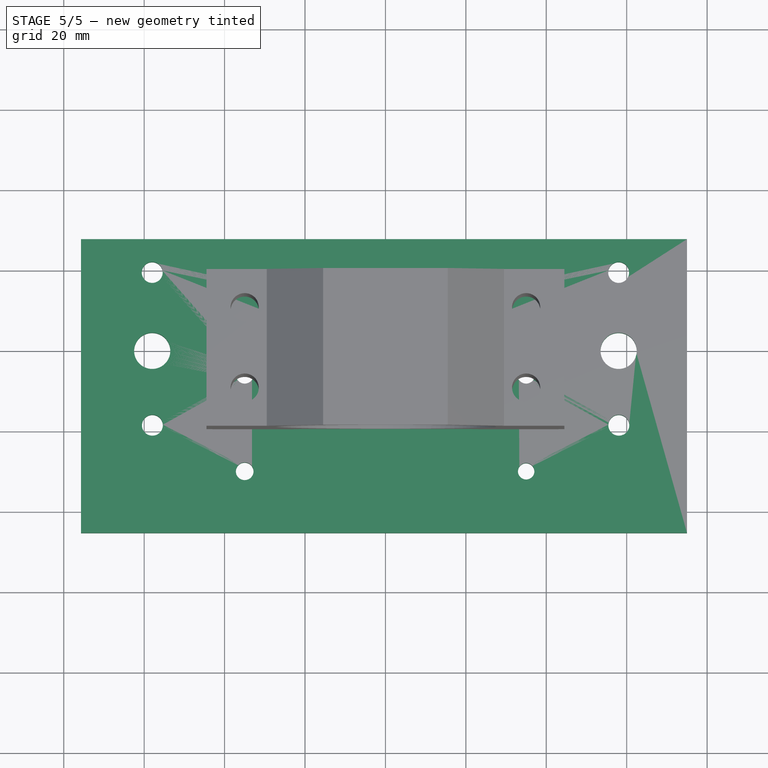
[diagram: stage 5 of 5 — top view after this stage's code; geometry added in this stage tinted green]
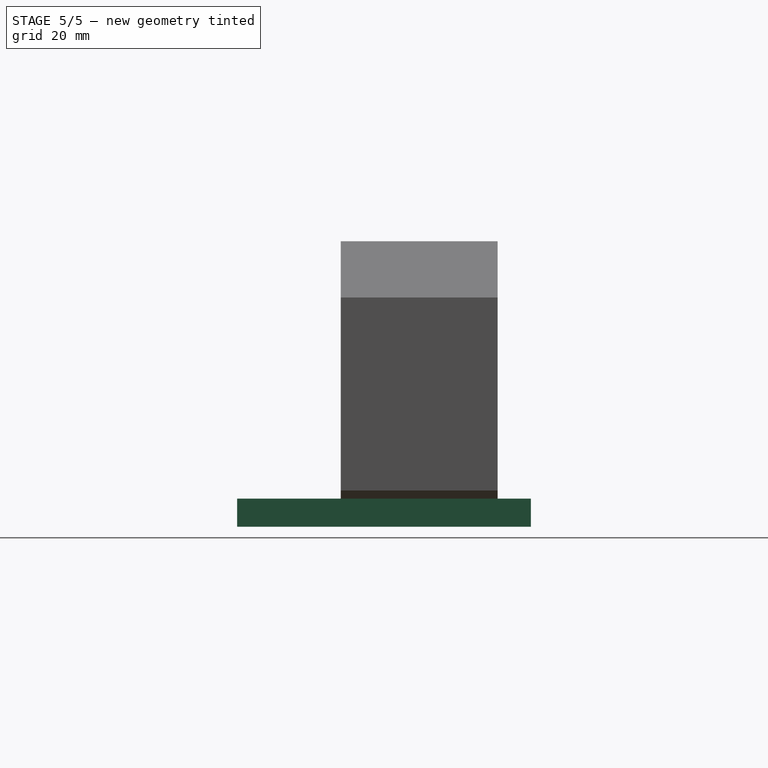
[diagram: stage 5 of 5 — right view after this stage's code; geometry added in this stage tinted green]
FEATURE [PartDesign::Pocket] Pocket005
  BaseFeature = -> Pad008
  Length = 5
  Length2 = 100
  Profile = -> Sketch015
  Type = 1
FEATURE [Sketcher::SketchObject] Sketch
  MapMode = 5
  Support = -> [XY_Plane]
  sketch-geometry (1):
    g0: Circle CenterX=0 CenterY=0 CenterZ=0 NormalX=0 NormalY=0 NormalZ=1 AngleXU=0 Radius=11
  constraints (2):
    c: Coincident(g0,g-1)
    c: Radius(g0) = 11
FEATURE [PartDesign::Pad] Pad
  Length = 2
  Length2 = 100
  Profile = -> Sketch
  Type = 0
FEATURE [Sketcher::SketchObject] Sketch001
  MapMode = 5
  Placement = pos=(0,0,2) rot=(0,0,1;0rad)
  Support = -> [Pad]
FEATURE [Sketcher::SketchObject] Sketch002
  MapMode = 5
  Placement = pos=(0,0,2) rot=(0,0,1;0rad)
  Support = -> [Pad]
  sketch-geometry (5):
    g0: Circle CenterX=0 CenterY=0 CenterZ=0 NormalX=0 NormalY=0 NormalZ=1 AngleXU=0 Radius=4
    g1: Circle CenterX=0 CenterY=-7.75 CenterZ=0 NormalX=0 NormalY=0 NormalZ=1 AngleXU=0 Radius=1.75
    g2: Circle CenterX=-7.75 CenterY=0 CenterZ=0 NormalX=0 NormalY=0 NormalZ=1 AngleXU=0 Radius=1.75
    g3: Circle CenterX=0 CenterY=7.75 CenterZ=0 NormalX=0 NormalY=0 NormalZ=1 AngleXU=0 Radius=1.75
    g4: Circle CenterX=7.75 CenterY=0 CenterZ=0 NormalX=0 NormalY=0 NormalZ=1 AngleXU=0 Radius=1.75
  constraints (12):
    c: Radius(g0) = 4
    c: PointOnObject(g1,g-2)
    c: Radius(g1) = 1.75
    c: DistanceY(g1,g-1) = 7.75
    c: Radius(g2) = 1.75
    c: DistanceX(g2,g-1) = 7.75
    c: DistanceY(g-1,g2) = 0
    c: PointOnObject(g3,g-2)
    c: Radius(g3) = 1.75
    c: DistanceY(g-1,g3) = 7.75
    c: DistanceX(g-1,g4) = 7.75
    c: Radius(g4) = 1.75
FEATURE [PartDesign::Pocket] Pocket
  BaseFeature = -> Pad
  Length = 5
  Length2 = 100
  Profile = -> Sketch002
  Type = 1
FEATURE [Sketcher::SketchObject] Sketch003
  MapMode = 5
  Placement = pos=(0,0,2) rot=(0,0,1;0rad)
  Support = -> [Pocket]
  sketch-geometry (1):
    g0: Circle CenterX=0 CenterY=0 CenterZ=0 NormalX=0 NormalY=0 NormalZ=1 AngleXU=0 Radius=5
  constraints (2):
    c: PointOnObject(g0,g-1)
    c: Radius(g0) = 5
FEATURE [PartDesign::Pad] Pad001
  BaseFeature = -> Pocket
  Length = 10
  Length2 = 5.6
  Profile = -> Sketch003
  Type = 4
FEATURE [Sketcher::SketchObject] Sketch004
  ExternalGeometry = -> [Pad001]
  MapMode = 5
  Placement = pos=(0,0,12) rot=(0,0,1;0rad)
  Support = -> [Pad001]
  sketch-geometry (1):
    g0: Circle CenterX=0 CenterY=0 CenterZ=0 NormalX=0 NormalY=0 NormalZ=1 AngleXU=0 Radius=4
  constraints (2):
    c: Coincident(g0,g-1)
    c: Radius(g0) = 4
FEATURE [PartDesign::Pocket] Pocket001
  BaseFeature = -> Pad001
  Length = 5
  Length2 = 100
  Profile = -> Sketch004
  Type = 1
FEATURE [Sketcher::SketchObject] Sketch005
  MapMode = 5
  Support = -> [XY_Plane]
FEATURE [PartDesign::Body] Body  label="Nut"
  Group = -> [Sketch,Pad,Sketch001,Sketch002,Pocket,Sketch003,Pad001,Sketch004,Pocket001,Sketch005]
  Origin = -> Origin
  Tip = -> Pocket001
FEATURE [PartDesign::Pad] Pad009
  BaseFeature = -> Pocket005
  Length = 4
  Length2 = 100
  Profile = -> Sketch017
  Reversed = true
  Type = 0
FEATURE [PartDesign::Body] Body002  label="Bearing2"
  Group = -> [Sketch012,Pad006,Sketch013,Pocket004,Sketch014,Pad007,Sketch016,Sketch015,Sketch017,Pad008,Pocket005,Pad009]
  Origin = -> Origin002
  Placement = pos=(-58,0,4) rot=(0,0,1;1.5708rad)
  Tip = -> Pad009
FEATURE [App::Part] Part  label="Bearing"
  Group = -> [Body002]
  License = CC BY 3.0
  LicenseURL = http://creativecommons.org/licenses/by/3.0/
  Origin = -> Origin004
FEATURE [App::Part] Part001  label="Nut001"
  Group = -> [Body]
  License = CC BY 3.0
  LicenseURL = http://creativecommons.org/licenses/by/3.0/
  Origin = -> Origin005
FEATURE [Sketcher::SketchObject] Sketch018
  MapMode = 5
  Support = -> [XY_Plane007]
  sketch-geometry (4):
    g0: LineSegment StartX=-75.7076 StartY=27.7788 StartZ=0 EndX=75 EndY=27.7788 EndZ=0
    g1: LineSegment StartX=75 StartY=27.7788 StartZ=0 EndX=75 EndY=-45.2743 EndZ=0
    g2: LineSegment StartX=75 StartY=-45.2743 StartZ=0 EndX=-75.7076 EndY=-45.2743 EndZ=0
    g3: LineSegment StartX=-75.7076 StartY=-45.2743 StartZ=0 EndX=-75.7076 EndY=27.7788 EndZ=0
  constraints (8):
    c: Coincident(g0,g1)
    c: Coincident(g1,g2)
    c: Coincident(g2,g3)
    c: Coincident(g3,g0)
    c: Horizontal(g0)
    c: Horizontal(g2)
    c: Vertical(g1)
    c: Vertical(g3)
FEATURE [PartDesign::Pad] Pad010
  Length = 7
  Length2 = 100
  Profile = -> Sketch018
  Reversed = true
  Type = 0
FEATURE [PartDesign::ShapeBinder] ShapeBinder003  label="L-Profile1"
  Placement = pos=(35,-24,0) rot=(0,0,1;1.5708rad)
  Support = -> [Clone001]
FEATURE [PartDesign::ShapeBinder] ShapeBinder004  label="L-Profile2"
  Support = -> [Clone002]
FEATURE [Sketcher::SketchObject] Sketch019
  ExternalGeometry = -> [ShapeBinder,ShapeBinder002,ShapeBinder001,ShapeBinder004,ShapeBinder003]
  MapMode = 5
  Support = -> [Pad010]
  sketch-geometry (35):
    g0: Circle CenterX=0 CenterY=7.69912 CenterZ=0 NormalX=0 NormalY=0 NormalZ=1 AngleXU=0 Radius=1.71573
    g1: GeomPoint X=-7.75 Y=0 Z=0
    g2: GeomPoint X=-9.43585 Y=-0.469473 Z=0
    g3: Circle CenterX=-7.75 CenterY=0 CenterZ=0 NormalX=0 NormalY=0 NormalZ=1 AngleXU=0 Radius=1.75
    g4: GeomPoint X=0 Y=-7.75 Z=0
    g5: GeomPoint X=0 Y=0 Z=0
    g6: GeomPoint X=7.75 Y=0 Z=0
    g7: GeomPoint X=6.09963 Y=-0.582048 Z=0
    g8: GeomPoint X=1.68493 Y=-7.27723 Z=0
    g9: Circle CenterX=0 CenterY=0 CenterZ=0 NormalX=0 NormalY=0 NormalZ=1 AngleXU=0 Radius=5.1
    g10: Circle CenterX=7.75 CenterY=0 CenterZ=0 NormalX=0 NormalY=0 NormalZ=1 AngleXU=0 Radius=1.75
    g11: Circle CenterX=0 CenterY=-7.75 CenterZ=0 NormalX=0 NormalY=0 NormalZ=1 AngleXU=0 Radius=1.75
    g12: GeomPoint X=-58 Y=19.5 Z=0
    g13: GeomPoint X=-57.5357 Y=16.9418 Z=0
    g14: GeomPoint X=-58 Y=0 Z=0
    g15: GeomPoint X=-57.9544 Y=-18.5 Z=0
    g16: GeomPoint X=-55.4695 Y=-19.2651 Z=0
    g17: GeomPoint X=58 Y=19.5 Z=0
    g18: GeomPoint X=55.641 Y=18.4067 Z=0
    g19: GeomPoint X=58 Y=0 Z=0
    g20: GeomPoint X=58.0456 Y=-18.5 Z=0
    g21: GeomPoint X=55.4879 Y=-18.967 Z=0
    g22: Circle CenterX=-58 CenterY=19.5 CenterZ=0 NormalX=0 NormalY=0 NormalZ=1 AngleXU=0 Radius=2.6
    g23: Circle CenterX=-58 CenterY=0 CenterZ=0 NormalX=0 NormalY=0 NormalZ=1 AngleXU=0 Radius=4.5
    g24: Circle CenterX=-57.9544 CenterY=-18.5 CenterZ=0 NormalX=0 NormalY=0 NormalZ=1 AngleXU=0 Radius=2.6
    g25: Circle CenterX=58 CenterY=19.5 CenterZ=0 NormalX=0 NormalY=0 NormalZ=1 AngleXU=0 Radius=2.6
    g26: Circle CenterX=58 CenterY=0 CenterZ=0 NormalX=0 NormalY=0 NormalZ=1 AngleXU=0 Radius=4.5
    g27: Circle CenterX=58.0456 CenterY=-18.5 CenterZ=0 NormalX=0 NormalY=0 NormalZ=1 AngleXU=0 Radius=2.6
    g28: GeomPoint X=-34.9974 Y=-3.75 Z=0
    g29: GeomPoint X=-35 Y=-29.95 Z=0
    g30: GeomPoint X=-33.631 Y=-28.2278 Z=0
    g31: Circle CenterX=-35 CenterY=-29.95 CenterZ=0 NormalX=0 NormalY=0 NormalZ=1 AngleXU=0 Radius=2.2
    g32: Circle CenterX=35 CenterY=-5.95 CenterZ=0 NormalX=0 NormalY=0 NormalZ=1 AngleXU=0 Radius=2.2
    g33: Circle CenterX=35 CenterY=-29.95 CenterZ=0 NormalX=0 NormalY=0 NormalZ=1 AngleXU=0 Radius=2.04689
    g34: Circle CenterX=-35 CenterY=-5.95 CenterZ=0 NormalX=0 NormalY=0 NormalZ=1 AngleXU=0 Radius=2.2
  constraints (45):
    c: Coincident(g1,g-4)
    c: PointOnObject(g2,g-4)
    c: Coincident(g3,g1)
    c: PointOnObject(g2,g3)
    c: Coincident(g4,g-7)
    c: Coincident(g5,g-1)
    c: Coincident(g6,g-6)
    c: PointOnObject(g7,g-6)
    c: PointOnObject(g8,g-7)
    c: Coincident(g9,g-1)
    c: Coincident(g10,g6)
    c: PointOnObject(g7,g10)
    c: Coincident(g11,g4)
    c: PointOnObject(g8,g11)
    c: Coincident(g12,g-12)
    c: PointOnObject(g13,g-12)
    c: Coincident(g14,g-13)
    c: Coincident(g15,g-11)
    c: PointOnObject(g16,g-11)
    c: Coincident(g17,g-8)
    c: PointOnObject(g18,g-8)
    c: Coincident(g19,g-9)
    c: Coincident(g20,g-10)
    c: PointOnObject(g21,g-10)
    c: Coincident(g22,g12)
    c: PointOnObject(g13,g22)
    c: Coincident(g23,g14)
    c: Coincident(g24,g15)
    c: PointOnObject(g16,g24)
    c: Coincident(g25,g17)
    c: PointOnObject(g18,g25)
    c: Coincident(g26,g19)
    c: Coincident(g27,g20)
    c: PointOnObject(g21,g27)
    c: PointOnObject(g28,g-14)
    c: Coincident(g29,g-15)
    c: PointOnObject(g30,g-15)
    c: Coincident(g31,g29)
    c: PointOnObject(g30,g31)
    c: Radius(g23) = 4.5
    c: Radius(g9) = 5.1
    c: Radius(g26) = 4.5
    c: Coincident(g32,g-16)
    c: Coincident(g33,g-17)
    c: Coincident(g34,g-14)
FEATURE [PartDesign::Pocket] Pocket006
  BaseFeature = -> Pad010
  Length = 5
  Length2 = 100
  Profile = -> Sketch019
  Type = 1
FEATURE [PartDesign::Body] Body004
  Group = -> [ShapeBinder001,ShapeBinder002,Sketch018,Pad010,ShapeBinder,Sketch019,Pocket006,ShapeBinder003,ShapeBinder004]
  Origin = -> Origin007
  Tip = -> Pocket006
FEATURE [App::Part] Part002  label="Base"
  Group = -> [Body004]
  License = CC BY 3.0
  LicenseURL = http://creativecommons.org/licenses/by/3.0/
  Origin = -> Origin006
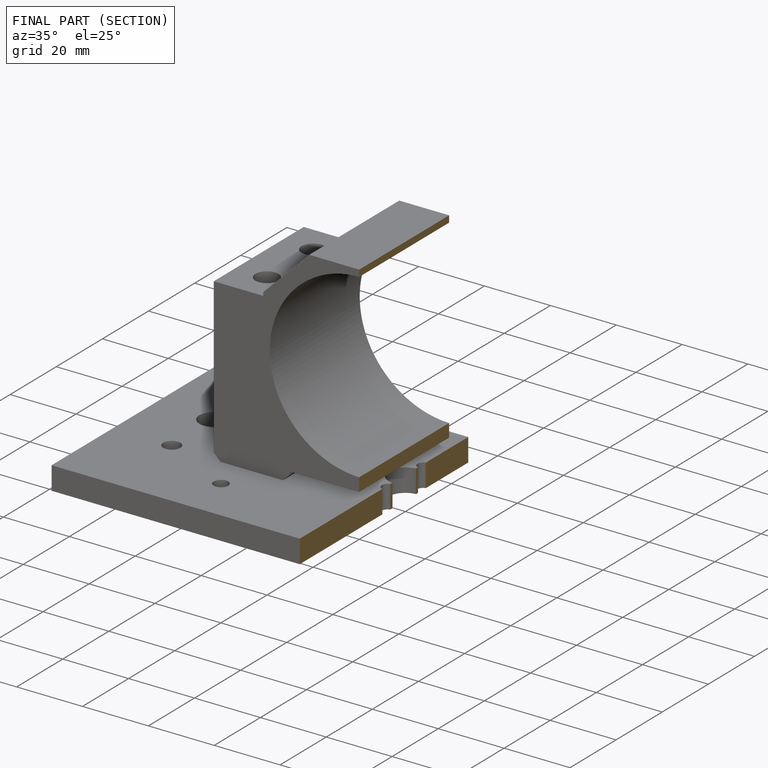
[diagram: finished part — half-section view (interior)]
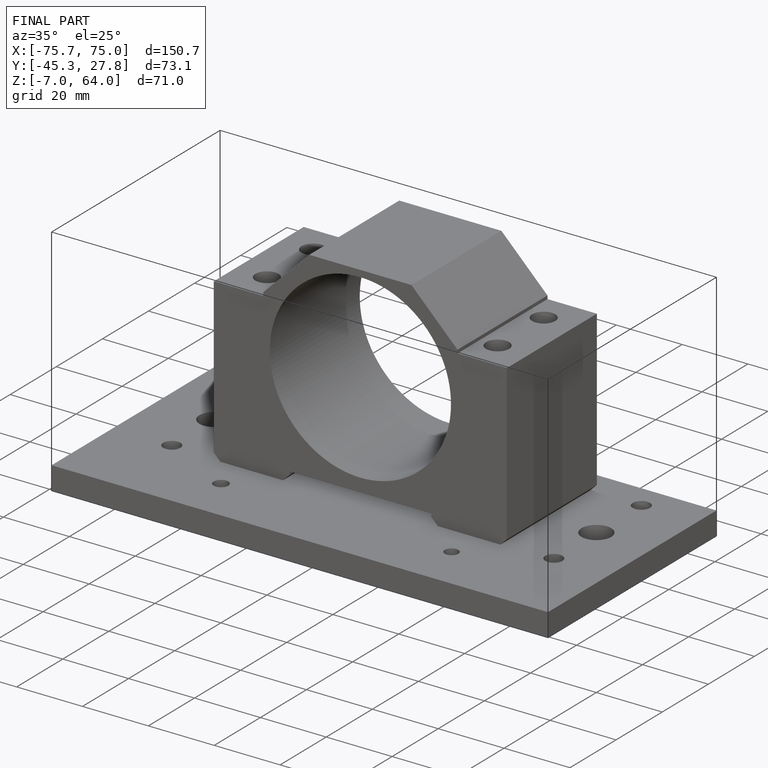
[diagram: finished part — iso view with bounding-box wireframe]
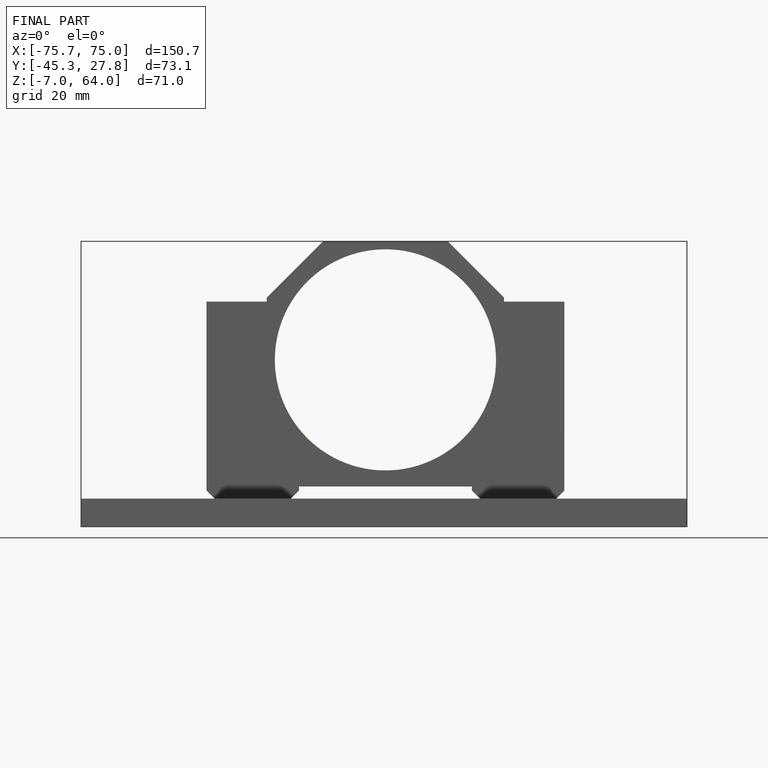
[diagram: finished part — front view with bounding-box wireframe]
